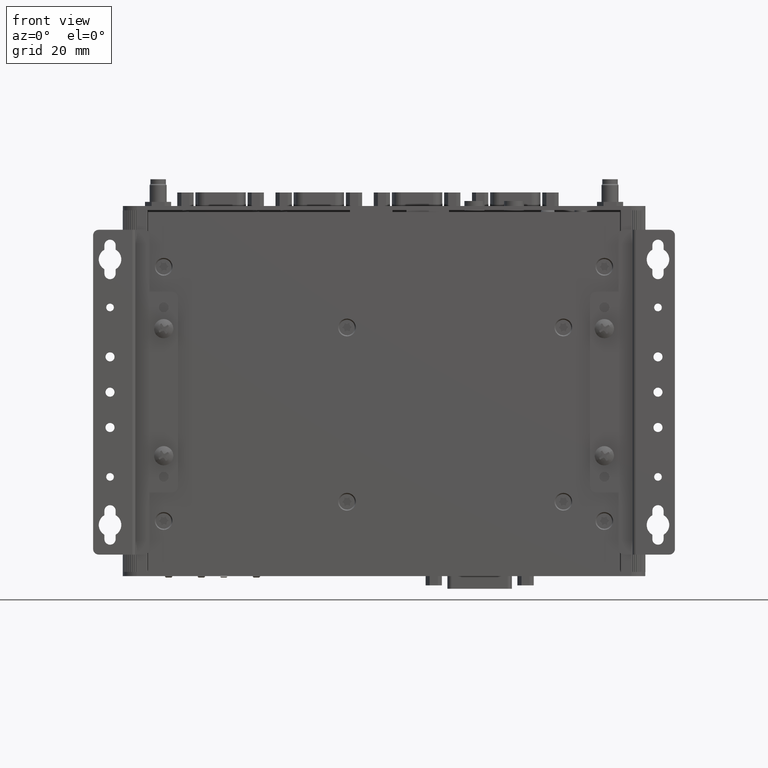
[diagram: clean part render]
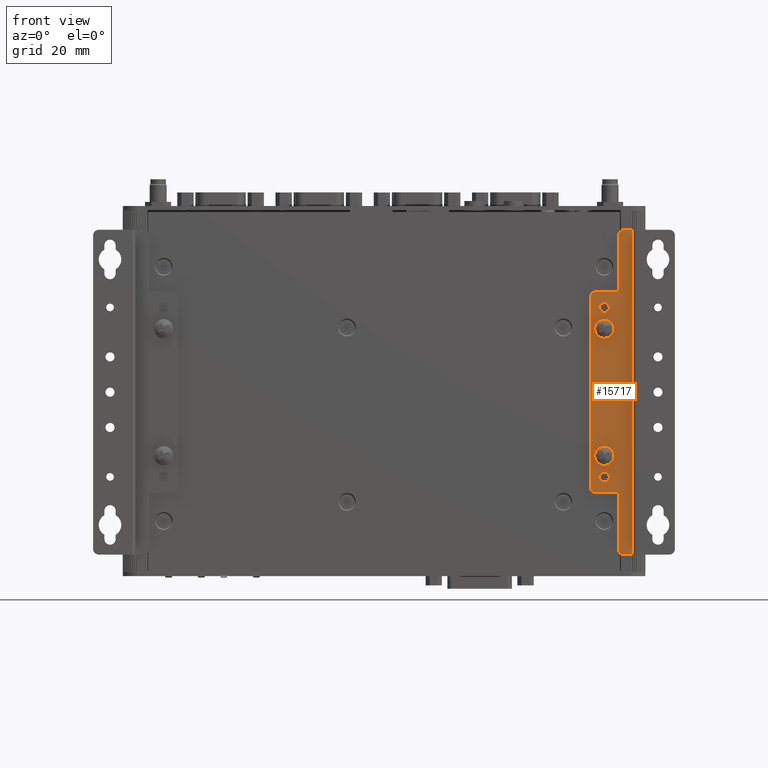
[diagram: same view with one face highlighted and labeled with its STEP entity id]
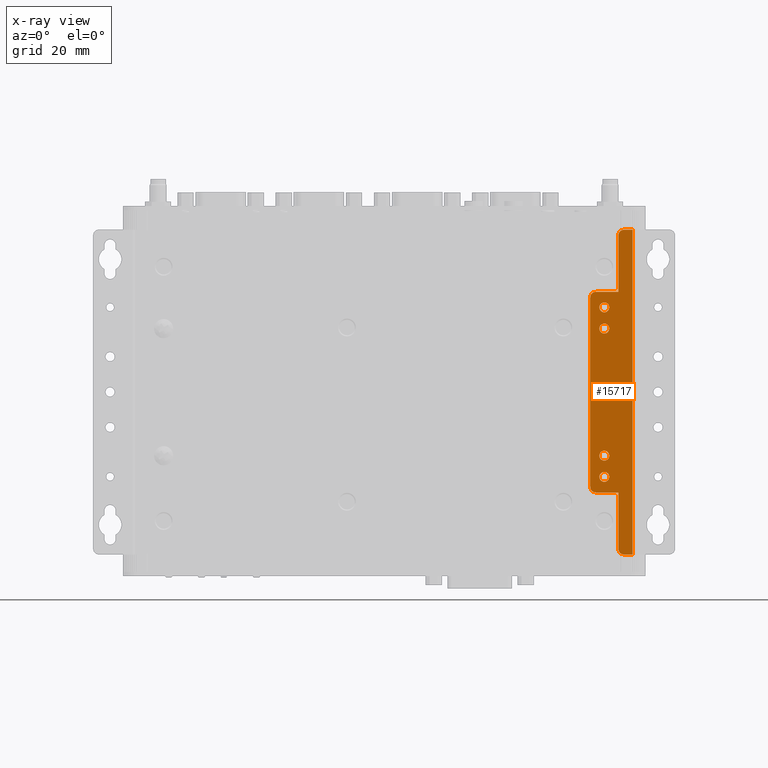
[diagram: x-ray of the same camera — body ghosted, the highlighted face saturated]
A machine part, front view. The second image highlights one B-rep face of the part: STEP entity #15717.
The next image is the same camera in x-ray: the body ghosted, the highlighted face saturated — about 0% of this face is hidden behind the body in this view.
In plain terms, the highlighted planar face has unit normal (0, 1, 0).
Its self-contained STEP definition (entity closure, byte-faithful):
#2263 = CARTESIAN_POINT ( 'NONE',  ( 116.3623694566560500, -36.41636936268162800, -8.399999999981339700 ) ) ;
#2265 = CARTESIAN_POINT ( 'NONE',  ( 101.3623694566560700, -36.41636936268162800, -8.399999999981435600 ) ) ;
#2266 = LINE ( 'NONE', #2263, #65547 ) ;
#2270 = DIRECTION ( 'NONE',  ( 6.476300976980088000E-015, 0.0000000000000000000, -1.000000000000000000 ) ) ;
#2274 = CARTESIAN_POINT ( 'NONE',  ( 113.3623694566568200, -36.41636936268162800, -123.3999999999813600 ) ) ;
#2275 = LINE ( 'NONE', #2265, #65548 ) ;
#2276 = CARTESIAN_POINT ( 'NONE',  ( 106.3623694566565200, -36.41636936268162800, -43.39999999998145300 ) ) ;
#2277 = DIRECTION ( 'NONE',  ( -0.0000000000000000000, 1.000000000000000000, 0.0000000000000000000 ) ) ;
#2278 = DIRECTION ( 'NONE',  ( 7.930164461608284900E-015, 0.0000000000000000000, -1.000000000000000000 ) ) ;
#2279 = DIRECTION ( 'NONE',  ( 1.000000000000000000, 0.0000000000000000000, 6.476300976980088000E-015 ) ) ;
#2280 = LINE ( 'NONE', #2274, #65552 ) ;
#2281 = CARTESIAN_POINT ( 'NONE',  ( 106.3623694566565400, -36.41636936268162800, -88.39999999998138900 ) ) ;
#2282 = DIRECTION ( 'NONE',  ( -0.0000000000000000000, 1.000000000000000000, 0.0000000000000000000 ) ) ;
#2283 = DIRECTION ( 'NONE',  ( 7.930164461608253300E-015, 0.0000000000000000000, -1.000000000000000000 ) ) ;
#2284 = DIRECTION ( 'NONE',  ( 1.000000000000000000, 0.0000000000000000000, 6.476300976980088800E-015 ) ) ;
#2285 = CARTESIAN_POINT ( 'NONE',  ( 106.3623694566565800, -36.41636936268162800, -95.89999999998144600 ) ) ;
#2286 = DIRECTION ( 'NONE',  ( -0.0000000000000000000, 1.000000000000000000, 0.0000000000000000000 ) ) ;
#2287 = DIRECTION ( 'NONE',  ( 7.930164461608253300E-015, 0.0000000000000000000, -1.000000000000000000 ) ) ;
#2709 = VERTEX_POINT ( 'NONE', #90302 ) ;
#10180 = EDGE_LOOP ( 'NONE', ( #46221, #46250 ) ) ;
#10205 = EDGE_LOOP ( 'NONE', ( #46813, #46450 ) ) ;
#15717 = ADVANCED_FACE ( 'NONE', ( #76694, #76696, #76698, #76700, #76693 ), #76690, .F. ) ;
#19545 = VERTEX_POINT ( 'NONE', #40829 ) ;
#19797 = VERTEX_POINT ( 'NONE', #40969 ) ;
#19834 = VERTEX_POINT ( 'NONE', #40991 ) ;
#19900 = VERTEX_POINT ( 'NONE', #41042 ) ;
#20019 = VERTEX_POINT ( 'NONE', #41130 ) ;
#20605 = VERTEX_POINT ( 'NONE', #41281 ) ;
#20756 = VERTEX_POINT ( 'NONE', #41351 ) ;
#20837 = VERTEX_POINT ( 'NONE', #41432 ) ;
#32123 = AXIS2_PLACEMENT_3D ( 'NONE', #76697, #76701, #76702 ) ;
#40829 = CARTESIAN_POINT ( 'NONE',  ( 106.3623694566565400, -36.41636936268162800, -45.14999999998144600 ) ) ;
#40969 = CARTESIAN_POINT ( 'NONE',  ( 106.3623694566565200, -36.41636936268162800, -86.64999999998137500 ) ) ;
#40991 = CARTESIAN_POINT ( 'NONE',  ( 106.3623694566565500, -36.41636936268162800, -90.14999999998138900 ) ) ;
#41042 = CARTESIAN_POINT ( 'NONE',  ( 111.3623694566566400, -36.41636936268162800, -101.3999999999813500 ) ) ;
#41130 = CARTESIAN_POINT ( 'NONE',  ( 106.3623694566565900, -36.41636936268162800, -97.64999999998144600 ) ) ;
#41281 = CARTESIAN_POINT ( 'NONE',  ( 106.3623694566564700, -36.41636936268162800, -34.14999999998139700 ) ) ;
#41351 = CARTESIAN_POINT ( 'NONE',  ( 113.3623694566564100, -36.41636936268162800, -8.399999999981352200 ) ) ;
#41432 = CARTESIAN_POINT ( 'NONE',  ( 106.3623694566565700, -36.41636936268162800, -94.14999999998144600 ) ) ;
#46211 = ORIENTED_EDGE ( 'NONE', *, *, #96032, .F. ) ;
#46213 = ORIENTED_EDGE ( 'NONE', *, *, #96035, .T. ) ;
#46215 = ORIENTED_EDGE ( 'NONE', *, *, #96038, .F. ) ;
#46221 = ORIENTED_EDGE ( 'NONE', *, *, #96123, .T. ) ;
#46223 = ORIENTED_EDGE ( 'NONE', *, *, #96015, .T. ) ;
#46225 = ORIENTED_EDGE ( 'NONE', *, *, #96025, .F. ) ;
#46250 = ORIENTED_EDGE ( 'NONE', *, *, #96021, .T. ) ;
#46253 = ORIENTED_EDGE ( 'NONE', *, *, #96031, .F. ) ;
#46446 = ORIENTED_EDGE ( 'NONE', *, *, #96020, .T. ) ;
#46450 = ORIENTED_EDGE ( 'NONE', *, *, #96017, .T. ) ;
#46485 = ORIENTED_EDGE ( 'NONE', *, *, #96016, .F. ) ;
#46501 = ORIENTED_EDGE ( 'NONE', *, *, #96048, .T. ) ;
#46503 = ORIENTED_EDGE ( 'NONE', *, *, #96013, .F. ) ;
#46505 = ORIENTED_EDGE ( 'NONE', *, *, #96018, .T. ) ;
#46520 = ORIENTED_EDGE ( 'NONE', *, *, #96041, .T. ) ;
#46522 = ORIENTED_EDGE ( 'NONE', *, *, #96044, .F. ) ;
#46524 = ORIENTED_EDGE ( 'NONE', *, *, #96054, .F. ) ;
#46795 = ORIENTED_EDGE ( 'NONE', *, *, #96127, .T. ) ;
#46813 = ORIENTED_EDGE ( 'NONE', *, *, #96022, .T. ) ;
#46815 = ORIENTED_EDGE ( 'NONE', *, *, #96019, .T. ) ;
#47858 = EDGE_LOOP ( 'NONE', ( #46795, #46815 ) ) ;
#48161 = EDGE_LOOP ( 'NONE', ( #46225, #46211, #46253, #46215, #46213, #46522, #46520, #46501, #46524, #46505, #46503, #46485 ) ) ;
#49170 = EDGE_LOOP ( 'NONE', ( #46446, #46223 ) ) ;
#54825 = VERTEX_POINT ( 'NONE', #55952 ) ;
#54827 = VERTEX_POINT ( 'NONE', #55954 ) ;
#54871 = VERTEX_POINT ( 'NONE', #55998 ) ;
#54873 = VERTEX_POINT ( 'NONE', #56000 ) ;
#55062 = VERTEX_POINT ( 'NONE', #56183 ) ;
#55068 = VERTEX_POINT ( 'NONE', #56189 ) ;
#55095 = VERTEX_POINT ( 'NONE', #56216 ) ;
#55235 = VERTEX_POINT ( 'NONE', #91218 ) ;
#55456 = VERTEX_POINT ( 'NONE', #91439 ) ;
#55460 = VERTEX_POINT ( 'NONE', #91443 ) ;
#55469 = VERTEX_POINT ( 'NONE', #91452 ) ;
#55952 = CARTESIAN_POINT ( 'NONE',  ( 103.3623694566550500, -36.41636936268162800, -30.39999999998145700 ) ) ;
#55954 = CARTESIAN_POINT ( 'NONE',  ( 111.3623694566564200, -36.41636936268162800, -10.39999999998138200 ) ) ;
#55998 = CARTESIAN_POINT ( 'NONE',  ( 101.3623694566564400, -36.41636936268162800, -32.39999999998148200 ) ) ;
#56000 = CARTESIAN_POINT ( 'NONE',  ( 111.3623694566567100, -36.41636936268162800, -121.3999999999813800 ) ) ;
#56183 = CARTESIAN_POINT ( 'NONE',  ( 101.3623694566566700, -36.41636936268162800, -99.39999999998141800 ) ) ;
#56189 = CARTESIAN_POINT ( 'NONE',  ( 111.3623694566564500, -36.41636936268162800, -30.39999999998140000 ) ) ;
#56216 = CARTESIAN_POINT ( 'NONE',  ( 103.3623694566566800, -36.41636936268162800, -101.3999999999814000 ) ) ;
#65547 = VECTOR ( 'NONE', #2270, 1000.000000000000000 ) ;
#65548 = VECTOR ( 'NONE', #2279, 1000.000000000000000 ) ;
#65551 = CIRCLE ( 'NONE', #65553, 1.749999999999994700 ) ;
#65552 = VECTOR ( 'NONE', #2284, 1000.000000000000000 ) ;
#65553 = AXIS2_PLACEMENT_3D ( 'NONE', #2276, #2277, #2278 ) ;
#65554 = CIRCLE ( 'NONE', #65556, 1.750000000000001600 ) ;
#65555 = CIRCLE ( 'NONE', #65559, 1.750000000000001600 ) ;
#65556 = AXIS2_PLACEMENT_3D ( 'NONE', #2281, #2282, #2283 ) ;
#65557 = CIRCLE ( 'NONE', #65561, 1.749999999999994700 ) ;
#65558 = CIRCLE ( 'NONE', #65565, 1.750000000000001600 ) ;
#65559 = AXIS2_PLACEMENT_3D ( 'NONE', #2285, #2286, #2287 ) ;
#65560 = CIRCLE ( 'NONE', #65563, 1.749999999999994700 ) ;
#65561 = AXIS2_PLACEMENT_3D ( 'NONE', #73528, #73529, #73530 ) ;
#65563 = AXIS2_PLACEMENT_3D ( 'NONE', #73531, #73532, #73533 ) ;
#65565 = AXIS2_PLACEMENT_3D ( 'NONE', #73534, #73535, #73536 ) ;
#65566 = CIRCLE ( 'NONE', #65571, 2.000000000000001800 ) ;
#65571 = AXIS2_PLACEMENT_3D ( 'NONE', #73545, #73546, #73547 ) ;
#65576 = VECTOR ( 'NONE', #73564, 1000.000000000000000 ) ;
#65578 = VECTOR ( 'NONE', #73567, 1000.000000000000000 ) ;
#65581 = VECTOR ( 'NONE', #73576, 1000.000000000000000 ) ;
#65585 = CIRCLE ( 'NONE', #65587, 2.000000000000001800 ) ;
#65587 = AXIS2_PLACEMENT_3D ( 'NONE', #73585, #73586, #73587 ) ;
#65589 = VECTOR ( 'NONE', #73594, 1000.000000000000000 ) ;
#65593 = CIRCLE ( 'NONE', #65595, 2.000000000000001800 ) ;
#65595 = AXIS2_PLACEMENT_3D ( 'NONE', #73604, #73605, #73606 ) ;
#65597 = VECTOR ( 'NONE', #73615, 1000.000000000000000 ) ;
#65605 = CIRCLE ( 'NONE', #65607, 2.000000000000001800 ) ;
#65607 = AXIS2_PLACEMENT_3D ( 'NONE', #73631, #73632, #73633 ) ;
#65707 = CIRCLE ( 'NONE', #65709, 1.749999999999994700 ) ;
#65709 = AXIS2_PLACEMENT_3D ( 'NONE', #73840, #73841, #73842 ) ;
#65713 = CIRCLE ( 'NONE', #65715, 1.750000000000001600 ) ;
#65715 = AXIS2_PLACEMENT_3D ( 'NONE', #73853, #73854, #73855 ) ;
#73528 = CARTESIAN_POINT ( 'NONE',  ( 106.3623694566565200, -36.41636936268162800, -43.39999999998145300 ) ) ;
#73529 = DIRECTION ( 'NONE',  ( -0.0000000000000000000, 1.000000000000000000, 0.0000000000000000000 ) ) ;
#73530 = DIRECTION ( 'NONE',  ( 7.930164461608284900E-015, 0.0000000000000000000, -1.000000000000000000 ) ) ;
#73531 = CARTESIAN_POINT ( 'NONE',  ( 106.3623694566564800, -36.41636936268162800, -35.89999999998138900 ) ) ;
#73532 = DIRECTION ( 'NONE',  ( -0.0000000000000000000, 1.000000000000000000, 0.0000000000000000000 ) ) ;
#73533 = DIRECTION ( 'NONE',  ( 7.930164461608284900E-015, 0.0000000000000000000, -1.000000000000000000 ) ) ;
#73534 = CARTESIAN_POINT ( 'NONE',  ( 106.3623694566565400, -36.41636936268162800, -88.39999999998138900 ) ) ;
#73535 = DIRECTION ( 'NONE',  ( -0.0000000000000000000, 1.000000000000000000, 0.0000000000000000000 ) ) ;
#73536 = DIRECTION ( 'NONE',  ( 7.930164461608253300E-015, 0.0000000000000000000, -1.000000000000000000 ) ) ;
#73540 = LINE ( 'NONE', #73563, #65576 ) ;
#73545 = CARTESIAN_POINT ( 'NONE',  ( 113.3623694566564200, -36.41636936268162800, -10.39999999998136800 ) ) ;
#73546 = DIRECTION ( 'NONE',  ( -0.0000000000000000000, 1.000000000000000000, 0.0000000000000000000 ) ) ;
#73547 = DIRECTION ( 'NONE',  ( 6.938893903907222100E-015, 0.0000000000000000000, -1.000000000000000000 ) ) ;
#73563 = CARTESIAN_POINT ( 'NONE',  ( 113.3623694566562200, -36.41636936268162800, -30.39999999998138600 ) ) ;
#73564 = DIRECTION ( 'NONE',  ( 1.000000000000000000, 0.0000000000000000000, 6.476300976980088000E-015 ) ) ;
#73565 = LINE ( 'NONE', #73566, #65578 ) ;
#73566 = CARTESIAN_POINT ( 'NONE',  ( 111.3623694566564200, -36.41636936268162800, -8.399999999981352200 ) ) ;
#73567 = DIRECTION ( 'NONE',  ( -9.251858538543092100E-016, 0.0000000000000000000, 1.000000000000000000 ) ) ;
#73574 = LINE ( 'NONE', #73575, #65581 ) ;
#73575 = CARTESIAN_POINT ( 'NONE',  ( 101.3623694566560700, -36.41636936268162800, -8.399999999981435600 ) ) ;
#73576 = DIRECTION ( 'NONE',  ( 6.476300976980088000E-015, 0.0000000000000000000, -1.000000000000000000 ) ) ;
#73585 = CARTESIAN_POINT ( 'NONE',  ( 103.3623694566564400, -36.41636936268162800, -32.39999999998146100 ) ) ;
#73586 = DIRECTION ( 'NONE',  ( -0.0000000000000000000, 1.000000000000000000, 0.0000000000000000000 ) ) ;
#73587 = DIRECTION ( 'NONE',  ( 6.938893903907222100E-015, 0.0000000000000000000, -1.000000000000000000 ) ) ;
#73592 = LINE ( 'NONE', #73593, #65589 ) ;
#73593 = CARTESIAN_POINT ( 'NONE',  ( 113.3623694566566900, -36.41636936268162800, -101.3999999999813300 ) ) ;
#73594 = DIRECTION ( 'NONE',  ( 1.000000000000000000, 0.0000000000000000000, 6.476300976980088000E-015 ) ) ;
#73604 = CARTESIAN_POINT ( 'NONE',  ( 103.3623694566566700, -36.41636936268162800, -99.39999999998140400 ) ) ;
#73605 = DIRECTION ( 'NONE',  ( -0.0000000000000000000, 1.000000000000000000, 0.0000000000000000000 ) ) ;
#73606 = DIRECTION ( 'NONE',  ( 6.938893903907222100E-015, 0.0000000000000000000, -1.000000000000000000 ) ) ;
#73607 = LINE ( 'NONE', #73614, #65597 ) ;
#73614 = CARTESIAN_POINT ( 'NONE',  ( 111.3623694566562800, -36.41636936268162800, -8.399999999981366400 ) ) ;
#73615 = DIRECTION ( 'NONE',  ( 3.700743415417199000E-015, 0.0000000000000000000, -1.000000000000000000 ) ) ;
#73631 = CARTESIAN_POINT ( 'NONE',  ( 113.3623694566567100, -36.41636936268162800, -121.3999999999813600 ) ) ;
#73632 = DIRECTION ( 'NONE',  ( -0.0000000000000000000, 1.000000000000000000, 0.0000000000000000000 ) ) ;
#73633 = DIRECTION ( 'NONE',  ( 6.938893903907222100E-015, 0.0000000000000000000, -1.000000000000000000 ) ) ;
#73840 = CARTESIAN_POINT ( 'NONE',  ( 106.3623694566564800, -36.41636936268162800, -35.89999999998138900 ) ) ;
#73841 = DIRECTION ( 'NONE',  ( -0.0000000000000000000, 1.000000000000000000, 0.0000000000000000000 ) ) ;
#73842 = DIRECTION ( 'NONE',  ( 7.930164461608284900E-015, 0.0000000000000000000, -1.000000000000000000 ) ) ;
#73853 = CARTESIAN_POINT ( 'NONE',  ( 106.3623694566565800, -36.41636936268162800, -95.89999999998144600 ) ) ;
#73854 = DIRECTION ( 'NONE',  ( -0.0000000000000000000, 1.000000000000000000, 0.0000000000000000000 ) ) ;
#73855 = DIRECTION ( 'NONE',  ( 7.930164461608253300E-015, 0.0000000000000000000, -1.000000000000000000 ) ) ;
#76690 = PLANE ( 'NONE',  #32123 ) ;
#76693 = FACE_OUTER_BOUND ( 'NONE', #48161, .T. ) ;
#76694 = FACE_BOUND ( 'NONE', #47858, .T. ) ;
#76696 = FACE_BOUND ( 'NONE', #10205, .T. ) ;
#76697 = CARTESIAN_POINT ( 'NONE',  ( 113.3623694566560800, -36.41636936268162800, -8.399999999981352200 ) ) ;
#76698 = FACE_BOUND ( 'NONE', #49170, .T. ) ;
#76700 = FACE_BOUND ( 'NONE', #10180, .T. ) ;
#76701 = DIRECTION ( 'NONE',  ( 0.0000000000000000000, 1.000000000000000000, 0.0000000000000000000 ) ) ;
#76702 = DIRECTION ( 'NONE',  ( 6.476300976980088000E-015, 0.0000000000000000000, -1.000000000000000000 ) ) ;
#90302 = CARTESIAN_POINT ( 'NONE',  ( 106.3623694566565000, -36.41636936268162800, -37.64999999998138200 ) ) ;
#91218 = CARTESIAN_POINT ( 'NONE',  ( 113.3623694566567400, -36.41636936268162800, -123.3999999999813600 ) ) ;
#91439 = CARTESIAN_POINT ( 'NONE',  ( 106.3623694566565200, -36.41636936268162800, -41.64999999998146100 ) ) ;
#91443 = CARTESIAN_POINT ( 'NONE',  ( 116.3623694566560500, -36.41636936268162800, -8.399999999981339700 ) ) ;
#91452 = CARTESIAN_POINT ( 'NONE',  ( 116.3623694566568100, -36.41636936268162800, -123.3999999999813500 ) ) ;
#96013 = EDGE_CURVE ( 'NONE', #55460, #55469, #2266, .T. ) ;
#96015 = EDGE_CURVE ( 'NONE', #55456, #19545, #65551, .T. ) ;
#96016 = EDGE_CURVE ( 'NONE', #20756, #55460, #2275, .T. ) ;
#96017 = EDGE_CURVE ( 'NONE', #19797, #19834, #65554, .T. ) ;
#96018 = EDGE_CURVE ( 'NONE', #55235, #55469, #2280, .T. ) ;
#96019 = EDGE_CURVE ( 'NONE', #20019, #20837, #65555, .T. ) ;
#96020 = EDGE_CURVE ( 'NONE', #19545, #55456, #65557, .T. ) ;
#96021 = EDGE_CURVE ( 'NONE', #2709, #20605, #65560, .T. ) ;
#96022 = EDGE_CURVE ( 'NONE', #19834, #19797, #65558, .T. ) ;
#96025 = EDGE_CURVE ( 'NONE', #54827, #20756, #65566, .T. ) ;
#96031 = EDGE_CURVE ( 'NONE', #54825, #55068, #73540, .T. ) ;
#96032 = EDGE_CURVE ( 'NONE', #55068, #54827, #73565, .T. ) ;
#96035 = EDGE_CURVE ( 'NONE', #54871, #55062, #73574, .T. ) ;
#96038 = EDGE_CURVE ( 'NONE', #54871, #54825, #65585, .T. ) ;
#96041 = EDGE_CURVE ( 'NONE', #55095, #19900, #73592, .T. ) ;
#96044 = EDGE_CURVE ( 'NONE', #55095, #55062, #65593, .T. ) ;
#96048 = EDGE_CURVE ( 'NONE', #19900, #54873, #73607, .T. ) ;
#96054 = EDGE_CURVE ( 'NONE', #55235, #54873, #65605, .T. ) ;
#96123 = EDGE_CURVE ( 'NONE', #20605, #2709, #65707, .T. ) ;
#96127 = EDGE_CURVE ( 'NONE', #20837, #20019, #65713, .T. ) ;